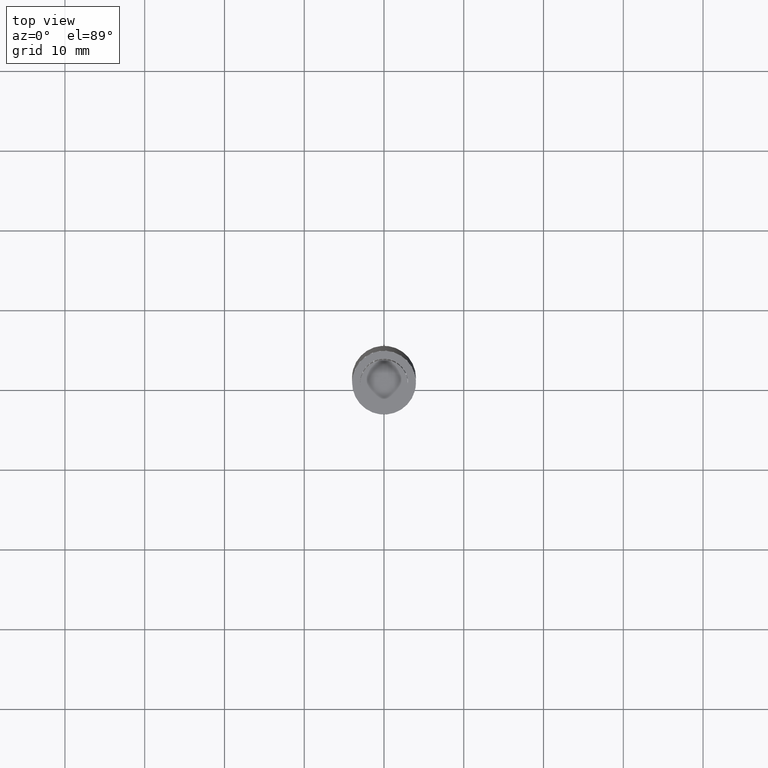
[diagram: clean part render]
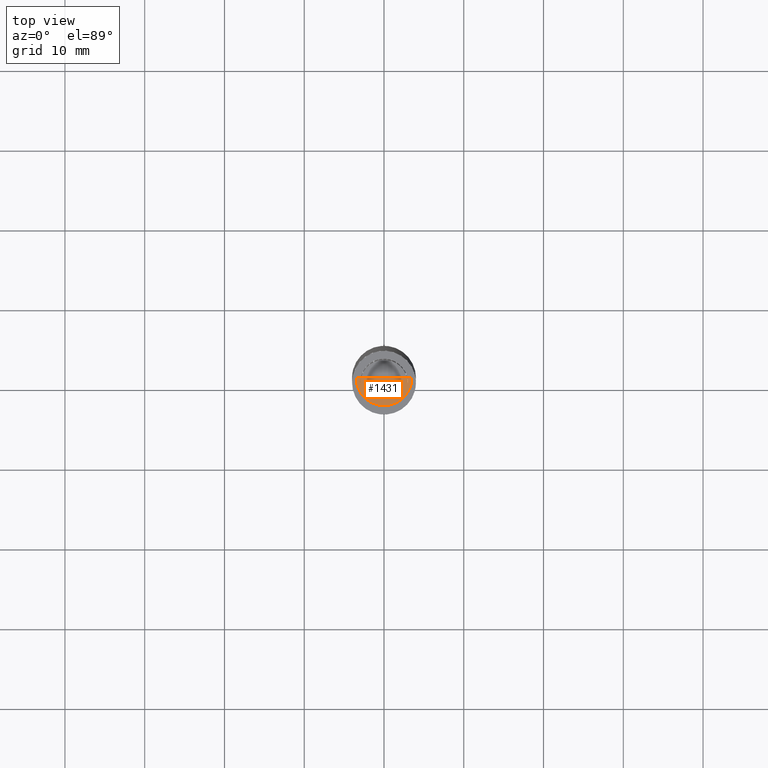
[diagram: same view with one face highlighted and labeled with its STEP entity id]
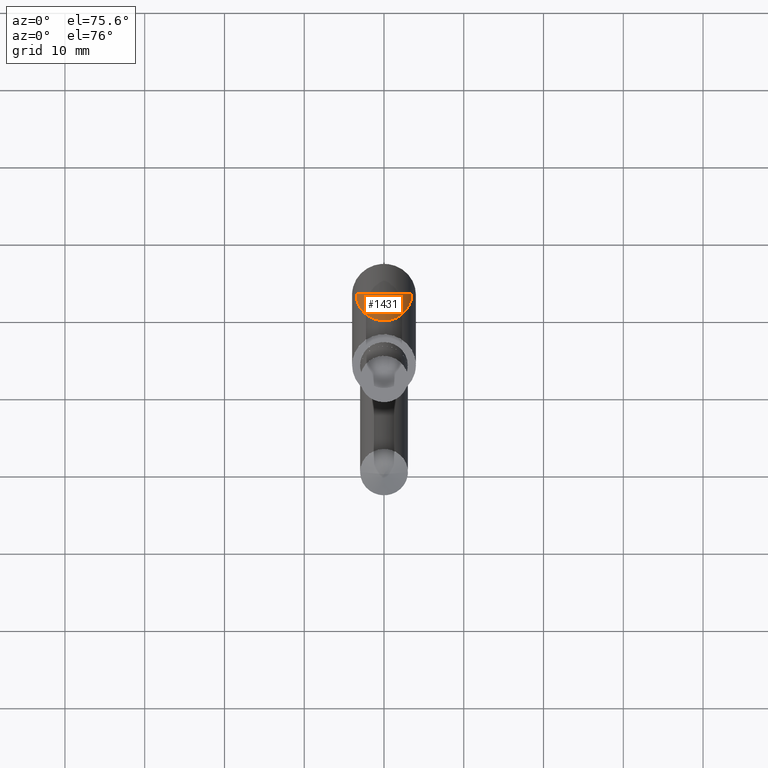
[diagram: same view with one face highlighted and labeled with its STEP entity id]
A machine part, top view. The second image highlights one B-rep face of the part: STEP entity #1431.
A second angle (auxiliary view) of the same face is appended — the face is thin or edge-on in the first view.
In plain terms, the highlighted face is a freeform B-spline surface patch.
Its self-contained STEP definition (entity closure, byte-faithful):
#1034=CARTESIAN_POINT('',(3.5,0.0,36.0));
#1038=CARTESIAN_POINT('',(-3.5,0.0,36.0));
#1039=CARTESIAN_POINT('',(0.0,0.0,36.0));
#1052=CARTESIAN_POINT('',(-3.5,-3.5,36.0));
#1053=CARTESIAN_POINT('',(0.0,-3.5,36.0));
#1054=CARTESIAN_POINT('',(3.5,-3.5,36.0));
#1416=(
BOUNDED_SURFACE()
B_SPLINE_SURFACE(1,2,(
(#1038,#1052,#1053,#1054,#1034),
(#1039,#1039,#1039,#1039,#1039)
), .UNSPECIFIED.,.F.,.F.,.F.)
B_SPLINE_SURFACE_WITH_KNOTS((2,2),(3,2,3),(
0.0,1.0),(
0.0,0.5,1.0), .UNSPECIFIED.)
GEOMETRIC_REPRESENTATION_ITEM()
RATIONAL_B_SPLINE_SURFACE(((1.0,0.707106781187,1.0,0.707106781187,1.0),
(1.0,0.707106781187,1.0,0.707106781187,1.0)
))
REPRESENTATION_ITEM('')
SURFACE()
);
#1417=(
BOUNDED_CURVE()
B_SPLINE_CURVE(2,(#1034,#1054,#1053,#1052,#1038),.UNSPECIFIED.,.F.,.F.)
B_SPLINE_CURVE_WITH_KNOTS((3,2,3),
(0.0,0.5,1.0),.UNSPECIFIED.)
CURVE()
GEOMETRIC_REPRESENTATION_ITEM()
RATIONAL_B_SPLINE_CURVE((1.0,0.707106781187,1.0,0.707106781187,1.0))
REPRESENTATION_ITEM('')
);
#1418=(
BOUNDED_CURVE()
B_SPLINE_CURVE(1,(#1038,#1039),.UNSPECIFIED.,.F.,.F.)
B_SPLINE_CURVE_WITH_KNOTS((2,2),
(0.0,1.0),.UNSPECIFIED.)
CURVE()
GEOMETRIC_REPRESENTATION_ITEM()
RATIONAL_B_SPLINE_CURVE((1.0,1.0))
REPRESENTATION_ITEM('')
);
#1419=(
BOUNDED_CURVE()
B_SPLINE_CURVE(1,(#1039,#1034),.UNSPECIFIED.,.F.,.F.)
B_SPLINE_CURVE_WITH_KNOTS((2,2),
(0.0,1.0),.UNSPECIFIED.)
CURVE()
GEOMETRIC_REPRESENTATION_ITEM()
RATIONAL_B_SPLINE_CURVE((1.0,1.0))
REPRESENTATION_ITEM('')
);
#1420=VERTEX_POINT('',#1034);
#1421=VERTEX_POINT('',#1038);
#1422=VERTEX_POINT('',#1039);
#1423=EDGE_CURVE('',#1420,#1421,#1417,.T.);
#1424=EDGE_CURVE('',#1421,#1422,#1418,.T.);
#1425=EDGE_CURVE('',#1422,#1420,#1419,.T.);
#1426=ORIENTED_EDGE('',*,*,#1423,.T.);
#1427=ORIENTED_EDGE('',*,*,#1424,.T.);
#1428=ORIENTED_EDGE('',*,*,#1425,.T.);
#1429=EDGE_LOOP('',(#1426,#1427,#1428));
#1430=FACE_OUTER_BOUND('',#1429,.T.);
#1431=ADVANCED_FACE('',(#1430),#1416,.T.);